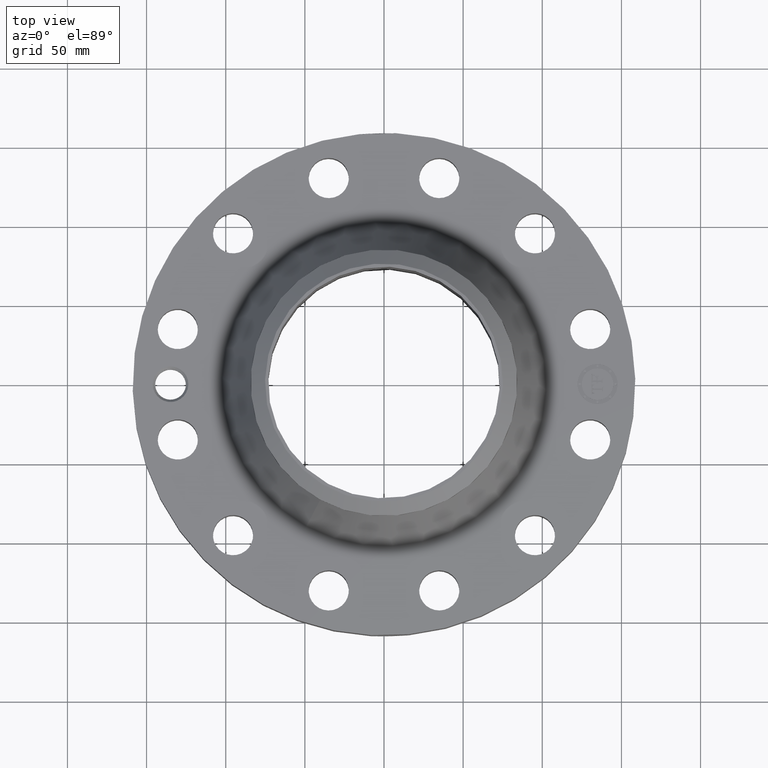
[diagram: clean part render]
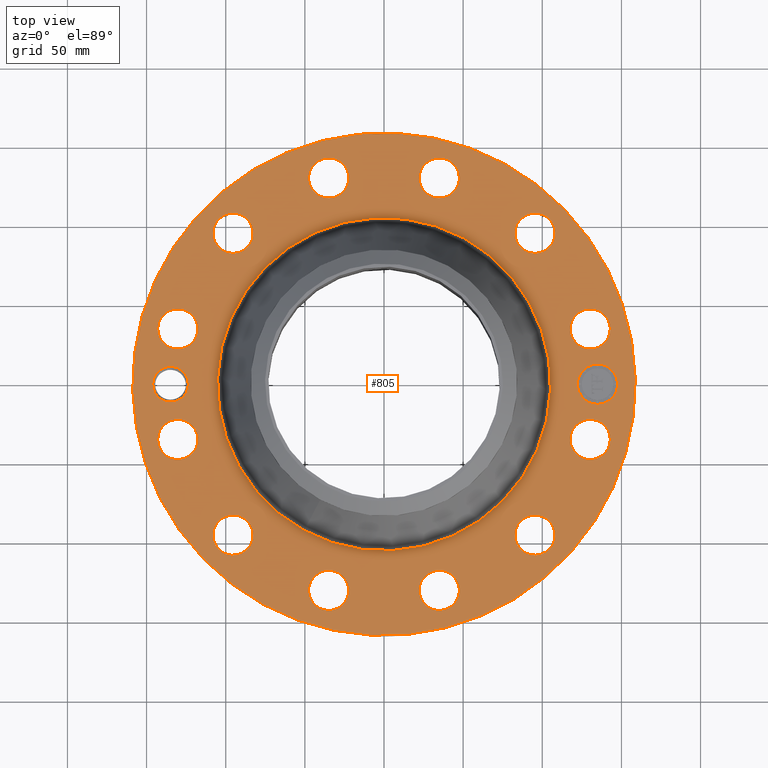
[diagram: same view with one face highlighted and labeled with its STEP entity id]
A machine part, top view. The second image highlights one B-rep face of the part: STEP entity #805.
In plain terms, the highlighted planar face has unit normal (0, 0, -1).
Its self-contained STEP definition (entity closure, byte-faithful):
#58=AXIS2_PLACEMENT_3D('Circle Axis2P3D',#56,#57,$) ;
#430=AXIS2_PLACEMENT_3D('Circle Axis2P3D',#428,#429,$) ;
#529=AXIS2_PLACEMENT_3D('Plane Axis2P3D',#526,#527,#528) ;
#537=AXIS2_PLACEMENT_3D('Circle Axis2P3D',#535,#536,$) ;
#546=AXIS2_PLACEMENT_3D('Circle Axis2P3D',#544,#545,$) ;
#555=AXIS2_PLACEMENT_3D('Circle Axis2P3D',#553,#554,$) ;
#564=AXIS2_PLACEMENT_3D('Circle Axis2P3D',#562,#563,$) ;
#573=AXIS2_PLACEMENT_3D('Circle Axis2P3D',#571,#572,$) ;
#582=AXIS2_PLACEMENT_3D('Circle Axis2P3D',#580,#581,$) ;
#591=AXIS2_PLACEMENT_3D('Circle Axis2P3D',#589,#590,$) ;
#600=AXIS2_PLACEMENT_3D('Circle Axis2P3D',#598,#599,$) ;
#609=AXIS2_PLACEMENT_3D('Circle Axis2P3D',#607,#608,$) ;
#618=AXIS2_PLACEMENT_3D('Circle Axis2P3D',#616,#617,$) ;
#627=AXIS2_PLACEMENT_3D('Circle Axis2P3D',#625,#626,$) ;
#636=AXIS2_PLACEMENT_3D('Circle Axis2P3D',#634,#635,$) ;
#645=AXIS2_PLACEMENT_3D('Circle Axis2P3D',#643,#644,$) ;
#654=AXIS2_PLACEMENT_3D('Circle Axis2P3D',#652,#653,$) ;
#663=AXIS2_PLACEMENT_3D('Circle Axis2P3D',#661,#662,$) ;
#672=AXIS2_PLACEMENT_3D('Circle Axis2P3D',#670,#671,$) ;
#681=AXIS2_PLACEMENT_3D('Circle Axis2P3D',#679,#680,$) ;
#690=AXIS2_PLACEMENT_3D('Circle Axis2P3D',#688,#689,$) ;
#699=AXIS2_PLACEMENT_3D('Circle Axis2P3D',#697,#698,$) ;
#708=AXIS2_PLACEMENT_3D('Circle Axis2P3D',#706,#707,$) ;
#717=AXIS2_PLACEMENT_3D('Circle Axis2P3D',#715,#716,$) ;
#726=AXIS2_PLACEMENT_3D('Circle Axis2P3D',#724,#725,$) ;
#735=AXIS2_PLACEMENT_3D('Circle Axis2P3D',#733,#734,$) ;
#744=AXIS2_PLACEMENT_3D('Circle Axis2P3D',#742,#743,$) ;
#753=AXIS2_PLACEMENT_3D('Circle Axis2P3D',#751,#752,$) ;
#762=AXIS2_PLACEMENT_3D('Circle Axis2P3D',#760,#761,$) ;
#771=AXIS2_PLACEMENT_3D('Circle Axis2P3D',#769,#770,$) ;
#780=AXIS2_PLACEMENT_3D('Circle Axis2P3D',#778,#779,$) ;
#789=AXIS2_PLACEMENT_3D('Circle Axis2P3D',#787,#788,$) ;
#798=AXIS2_PLACEMENT_3D('Circle Axis2P3D',#796,#797,$) ;
#53=CARTESIAN_POINT('Vertex',(-2.99640961629,-5.48489101184,1.87000000001)) ;
#56=CARTESIAN_POINT('Axis2P3D Location',(0.,0.,1.87000000001)) ;
#60=CARTESIAN_POINT('Vertex',(2.99640961629,5.48489101184,1.87000000001)) ;
#428=CARTESIAN_POINT('Axis2P3D Location',(0.,0.,1.87000000001)) ;
#526=CARTESIAN_POINT('Axis2P3D Location',(0.,6.25000000003,1.87000000001)) ;
#535=CARTESIAN_POINT('Axis2P3D Location',(-5.31000000002,-1.1189649382E-015,1.87000000001)) ;
#539=CARTESIAN_POINT('Vertex',(-5.69860672217,0.212296819878,1.87000000001)) ;
#541=CARTESIAN_POINT('Vertex',(-4.92139327788,-0.212296819878,1.87000000001)) ;
#544=CARTESIAN_POINT('Axis2P3D Location',(-5.31000000002,-1.1189649382E-015,1.87000000001)) ;
#553=CARTESIAN_POINT('Axis2P3D Location',(5.12906613762,-1.3743291295,1.87000000001)) ;
#557=CARTESIAN_POINT('Vertex',(4.69027485667,-1.1346163602,1.87000000001)) ;
#559=CARTESIAN_POINT('Vertex',(5.56785741856,-1.6140418988,1.87000000001)) ;
#562=CARTESIAN_POINT('Axis2P3D Location',(5.12906613762,-1.3743291295,1.87000000001)) ;
#571=CARTESIAN_POINT('Axis2P3D Location',(0.,0.,1.87000000001)) ;
#575=CARTESIAN_POINT('Vertex',(-1.98593442529,-3.63522858162,1.87000000001)) ;
#577=CARTESIAN_POINT('Vertex',(1.98593442529,3.63522858162,1.87000000001)) ;
#580=CARTESIAN_POINT('Axis2P3D Location',(0.,0.,1.87000000001)) ;
#589=CARTESIAN_POINT('Axis2P3D Location',(3.75473700812,-3.75473700812,1.87000000001)) ;
#593=CARTESIAN_POINT('Vertex',(4.01488501972,-4.18172999642,1.87000000001)) ;
#595=CARTESIAN_POINT('Vertex',(3.49458899651,-3.32774401981,1.87000000001)) ;
#598=CARTESIAN_POINT('Axis2P3D Location',(3.75473700812,-3.75473700812,1.87000000001)) ;
#607=CARTESIAN_POINT('Axis2P3D Location',(1.3743291295,-5.12906613762,1.87000000001)) ;
#611=CARTESIAN_POINT('Vertex',(1.38612742215,-5.62892691853,1.87000000001)) ;
#613=CARTESIAN_POINT('Vertex',(1.36253083685,-4.6292053567,1.87000000001)) ;
#616=CARTESIAN_POINT('Axis2P3D Location',(1.3743291295,-5.12906613762,1.87000000001)) ;
#625=CARTESIAN_POINT('Axis2P3D Location',(-1.3743291295,-5.12906613762,1.87000000001)) ;
#629=CARTESIAN_POINT('Vertex',(-1.6140418988,-5.56785741856,1.87000000001)) ;
#631=CARTESIAN_POINT('Vertex',(-1.1346163602,-4.69027485667,1.87000000001)) ;
#634=CARTESIAN_POINT('Axis2P3D Location',(-1.3743291295,-5.12906613762,1.87000000001)) ;
#643=CARTESIAN_POINT('Axis2P3D Location',(-3.75473700812,-3.75473700812,1.87000000001)) ;
#647=CARTESIAN_POINT('Vertex',(-4.18172999642,-4.01488501972,1.87000000001)) ;
#649=CARTESIAN_POINT('Vertex',(-3.32774401981,-3.49458899651,1.87000000001)) ;
#652=CARTESIAN_POINT('Axis2P3D Location',(-3.75473700812,-3.75473700812,1.87000000001)) ;
#661=CARTESIAN_POINT('Axis2P3D Location',(-5.12906613762,-1.3743291295,1.87000000001)) ;
#665=CARTESIAN_POINT('Vertex',(-5.62892691853,-1.38612742215,1.87000000001)) ;
#667=CARTESIAN_POINT('Vertex',(-4.6292053567,-1.36253083685,1.87000000001)) ;
#670=CARTESIAN_POINT('Axis2P3D Location',(-5.12906613762,-1.3743291295,1.87000000001)) ;
#679=CARTESIAN_POINT('Axis2P3D Location',(-5.12906613762,1.3743291295,1.87000000001)) ;
#683=CARTESIAN_POINT('Vertex',(-5.56785741856,1.6140418988,1.87000000001)) ;
#685=CARTESIAN_POINT('Vertex',(-4.69027485667,1.1346163602,1.87000000001)) ;
#688=CARTESIAN_POINT('Axis2P3D Location',(-5.12906613762,1.3743291295,1.87000000001)) ;
#697=CARTESIAN_POINT('Axis2P3D Location',(-3.75473700812,3.75473700812,1.87000000001)) ;
#701=CARTESIAN_POINT('Vertex',(-4.01488501972,4.18172999642,1.87000000001)) ;
#703=CARTESIAN_POINT('Vertex',(-3.49458899651,3.32774401981,1.87000000001)) ;
#706=CARTESIAN_POINT('Axis2P3D Location',(-3.75473700812,3.75473700812,1.87000000001)) ;
#715=CARTESIAN_POINT('Axis2P3D Location',(-1.3743291295,5.12906613762,1.87000000001)) ;
#719=CARTESIAN_POINT('Vertex',(-1.38612742215,5.62892691853,1.87000000001)) ;
#721=CARTESIAN_POINT('Vertex',(-1.36253083685,4.6292053567,1.87000000001)) ;
#724=CARTESIAN_POINT('Axis2P3D Location',(-1.3743291295,5.12906613762,1.87000000001)) ;
#733=CARTESIAN_POINT('Axis2P3D Location',(1.3743291295,5.12906613762,1.87000000001)) ;
#737=CARTESIAN_POINT('Vertex',(1.6140418988,5.56785741856,1.87000000001)) ;
#739=CARTESIAN_POINT('Vertex',(1.1346163602,4.69027485667,1.87000000001)) ;
#742=CARTESIAN_POINT('Axis2P3D Location',(1.3743291295,5.12906613762,1.87000000001)) ;
#751=CARTESIAN_POINT('Axis2P3D Location',(3.75473700812,3.75473700812,1.87000000001)) ;
#755=CARTESIAN_POINT('Vertex',(4.18172999642,4.01488501972,1.87000000001)) ;
#757=CARTESIAN_POINT('Vertex',(3.32774401981,3.49458899651,1.87000000001)) ;
#760=CARTESIAN_POINT('Axis2P3D Location',(3.75473700812,3.75473700812,1.87000000001)) ;
#769=CARTESIAN_POINT('Axis2P3D Location',(5.12906613762,1.3743291295,1.87000000001)) ;
#773=CARTESIAN_POINT('Vertex',(5.62892691853,1.38612742215,1.87000000001)) ;
#775=CARTESIAN_POINT('Vertex',(4.6292053567,1.36253083685,1.87000000001)) ;
#778=CARTESIAN_POINT('Axis2P3D Location',(5.12906613762,1.3743291295,1.87000000001)) ;
#787=CARTESIAN_POINT('Axis2P3D Location',(5.31000000002,-1.90224039495E-014,1.87000000001)) ;
#791=CARTESIAN_POINT('Vertex',(5.31000000002,0.499999995002,1.87000000001)) ;
#793=CARTESIAN_POINT('Vertex',(5.31000000002,-0.499999995002,1.87000000001)) ;
#796=CARTESIAN_POINT('Axis2P3D Location',(5.31000000002,-2.01413688877E-014,1.87000000001)) ;
#57=DIRECTION('Axis2P3D Direction',(0.,0.,-0.0393700787402)) ;
#429=DIRECTION('Axis2P3D Direction',(0.,0.,-0.0393700787402)) ;
#527=DIRECTION('Axis2P3D Direction',(0.,0.,-0.0393700787402)) ;
#528=DIRECTION('Axis2P3D XDirection',(0.0393700787402,0.,0.)) ;
#536=DIRECTION('Axis2P3D Direction',(0.,0.,-0.0393700787402)) ;
#545=DIRECTION('Axis2P3D Direction',(0.,0.,-0.0393700787402)) ;
#554=DIRECTION('Axis2P3D Direction',(0.,0.,-0.0393700787402)) ;
#563=DIRECTION('Axis2P3D Direction',(0.,0.,-0.0393700787402)) ;
#572=DIRECTION('Axis2P3D Direction',(0.,0.,-0.0393700787402)) ;
#581=DIRECTION('Axis2P3D Direction',(0.,0.,-0.0393700787402)) ;
#590=DIRECTION('Axis2P3D Direction',(0.,0.,-0.0393700787402)) ;
#599=DIRECTION('Axis2P3D Direction',(0.,0.,-0.0393700787402)) ;
#608=DIRECTION('Axis2P3D Direction',(0.,0.,-0.0393700787402)) ;
#617=DIRECTION('Axis2P3D Direction',(0.,0.,-0.0393700787402)) ;
#626=DIRECTION('Axis2P3D Direction',(0.,0.,-0.0393700787402)) ;
#635=DIRECTION('Axis2P3D Direction',(0.,0.,-0.0393700787402)) ;
#644=DIRECTION('Axis2P3D Direction',(0.,0.,-0.0393700787402)) ;
#653=DIRECTION('Axis2P3D Direction',(0.,0.,-0.0393700787402)) ;
#662=DIRECTION('Axis2P3D Direction',(0.,0.,-0.0393700787402)) ;
#671=DIRECTION('Axis2P3D Direction',(0.,0.,-0.0393700787402)) ;
#680=DIRECTION('Axis2P3D Direction',(0.,0.,-0.0393700787402)) ;
#689=DIRECTION('Axis2P3D Direction',(0.,0.,-0.0393700787402)) ;
#698=DIRECTION('Axis2P3D Direction',(0.,0.,-0.0393700787402)) ;
#707=DIRECTION('Axis2P3D Direction',(0.,0.,-0.0393700787402)) ;
#716=DIRECTION('Axis2P3D Direction',(0.,0.,-0.0393700787402)) ;
#725=DIRECTION('Axis2P3D Direction',(0.,0.,-0.0393700787402)) ;
#734=DIRECTION('Axis2P3D Direction',(0.,0.,-0.0393700787402)) ;
#743=DIRECTION('Axis2P3D Direction',(0.,0.,-0.0393700787402)) ;
#752=DIRECTION('Axis2P3D Direction',(0.,0.,-0.0393700787402)) ;
#761=DIRECTION('Axis2P3D Direction',(0.,0.,-0.0393700787402)) ;
#770=DIRECTION('Axis2P3D Direction',(0.,0.,-0.0393700787402)) ;
#779=DIRECTION('Axis2P3D Direction',(0.,0.,-0.0393700787402)) ;
#788=DIRECTION('Axis2P3D Direction',(0.,0.,-0.0393700787402)) ;
#797=DIRECTION('Axis2P3D Direction',(0.,0.,-0.0393700787402)) ;
#532=ORIENTED_EDGE('',*,*,#432,.F.) ;
#533=ORIENTED_EDGE('',*,*,#62,.F.) ;
#550=ORIENTED_EDGE('',*,*,#543,.T.) ;
#551=ORIENTED_EDGE('',*,*,#548,.T.) ;
#568=ORIENTED_EDGE('',*,*,#561,.T.) ;
#569=ORIENTED_EDGE('',*,*,#566,.T.) ;
#586=ORIENTED_EDGE('',*,*,#579,.T.) ;
#587=ORIENTED_EDGE('',*,*,#584,.T.) ;
#604=ORIENTED_EDGE('',*,*,#597,.T.) ;
#605=ORIENTED_EDGE('',*,*,#602,.T.) ;
#622=ORIENTED_EDGE('',*,*,#615,.T.) ;
#623=ORIENTED_EDGE('',*,*,#620,.T.) ;
#640=ORIENTED_EDGE('',*,*,#633,.T.) ;
#641=ORIENTED_EDGE('',*,*,#638,.T.) ;
#658=ORIENTED_EDGE('',*,*,#651,.T.) ;
#659=ORIENTED_EDGE('',*,*,#656,.T.) ;
#676=ORIENTED_EDGE('',*,*,#669,.T.) ;
#677=ORIENTED_EDGE('',*,*,#674,.T.) ;
#694=ORIENTED_EDGE('',*,*,#687,.T.) ;
#695=ORIENTED_EDGE('',*,*,#692,.T.) ;
#712=ORIENTED_EDGE('',*,*,#705,.T.) ;
#713=ORIENTED_EDGE('',*,*,#710,.T.) ;
#730=ORIENTED_EDGE('',*,*,#723,.T.) ;
#731=ORIENTED_EDGE('',*,*,#728,.T.) ;
#748=ORIENTED_EDGE('',*,*,#741,.T.) ;
#749=ORIENTED_EDGE('',*,*,#746,.T.) ;
#766=ORIENTED_EDGE('',*,*,#759,.T.) ;
#767=ORIENTED_EDGE('',*,*,#764,.T.) ;
#784=ORIENTED_EDGE('',*,*,#777,.T.) ;
#785=ORIENTED_EDGE('',*,*,#782,.T.) ;
#802=ORIENTED_EDGE('',*,*,#795,.T.) ;
#803=ORIENTED_EDGE('',*,*,#800,.T.) ;
#552=FACE_BOUND('',#549,.T.) ;
#570=FACE_BOUND('',#567,.T.) ;
#588=FACE_BOUND('',#585,.T.) ;
#606=FACE_BOUND('',#603,.T.) ;
#624=FACE_BOUND('',#621,.T.) ;
#642=FACE_BOUND('',#639,.T.) ;
#660=FACE_BOUND('',#657,.T.) ;
#678=FACE_BOUND('',#675,.T.) ;
#696=FACE_BOUND('',#693,.T.) ;
#714=FACE_BOUND('',#711,.T.) ;
#732=FACE_BOUND('',#729,.T.) ;
#750=FACE_BOUND('',#747,.T.) ;
#768=FACE_BOUND('',#765,.T.) ;
#786=FACE_BOUND('',#783,.T.) ;
#804=FACE_BOUND('',#801,.T.) ;
#805=ADVANCED_FACE('PartBody',(#534,#552,#570,#588,#606,#624,#642,#660,#678,#696,#714,#732,#750,#768,#786,#804),#530,.F.) ;
#59=CIRCLE('generated circle',#58,6.25000000003) ;
#431=CIRCLE('generated circle',#430,6.25000000003) ;
#538=CIRCLE('generated circle',#537,0.442815000002) ;
#547=CIRCLE('generated circle',#546,0.442815000002) ;
#556=CIRCLE('generated circle',#555,0.500000000002) ;
#565=CIRCLE('generated circle',#564,0.500000000002) ;
#574=CIRCLE('generated circle',#573,4.14232089319) ;
#583=CIRCLE('generated circle',#582,4.14232089319) ;
#592=CIRCLE('generated circle',#591,0.500000000002) ;
#601=CIRCLE('generated circle',#600,0.500000000002) ;
#610=CIRCLE('generated circle',#609,0.500000000002) ;
#619=CIRCLE('generated circle',#618,0.500000000002) ;
#628=CIRCLE('generated circle',#627,0.500000000002) ;
#637=CIRCLE('generated circle',#636,0.500000000002) ;
#646=CIRCLE('generated circle',#645,0.500000000002) ;
#655=CIRCLE('generated circle',#654,0.500000000002) ;
#664=CIRCLE('generated circle',#663,0.500000000002) ;
#673=CIRCLE('generated circle',#672,0.500000000002) ;
#682=CIRCLE('generated circle',#681,0.500000000002) ;
#691=CIRCLE('generated circle',#690,0.500000000002) ;
#700=CIRCLE('generated circle',#699,0.500000000002) ;
#709=CIRCLE('generated circle',#708,0.500000000002) ;
#718=CIRCLE('generated circle',#717,0.500000000002) ;
#727=CIRCLE('generated circle',#726,0.500000000002) ;
#736=CIRCLE('generated circle',#735,0.500000000002) ;
#745=CIRCLE('generated circle',#744,0.500000000002) ;
#754=CIRCLE('generated circle',#753,0.500000000002) ;
#763=CIRCLE('generated circle',#762,0.500000000002) ;
#772=CIRCLE('generated circle',#771,0.500000000002) ;
#781=CIRCLE('generated circle',#780,0.500000000002) ;
#790=CIRCLE('generated circle',#789,0.499999995002) ;
#799=CIRCLE('generated circle',#798,0.499999995002) ;
#62=EDGE_CURVE('',#54,#61,#59,.T.) ;
#432=EDGE_CURVE('',#61,#54,#431,.T.) ;
#543=EDGE_CURVE('',#540,#542,#538,.T.) ;
#548=EDGE_CURVE('',#542,#540,#547,.T.) ;
#561=EDGE_CURVE('',#558,#560,#556,.T.) ;
#566=EDGE_CURVE('',#560,#558,#565,.T.) ;
#579=EDGE_CURVE('',#576,#578,#574,.T.) ;
#584=EDGE_CURVE('',#578,#576,#583,.T.) ;
#597=EDGE_CURVE('',#594,#596,#592,.T.) ;
#602=EDGE_CURVE('',#596,#594,#601,.T.) ;
#615=EDGE_CURVE('',#612,#614,#610,.T.) ;
#620=EDGE_CURVE('',#614,#612,#619,.T.) ;
#633=EDGE_CURVE('',#630,#632,#628,.T.) ;
#638=EDGE_CURVE('',#632,#630,#637,.T.) ;
#651=EDGE_CURVE('',#648,#650,#646,.T.) ;
#656=EDGE_CURVE('',#650,#648,#655,.T.) ;
#669=EDGE_CURVE('',#666,#668,#664,.T.) ;
#674=EDGE_CURVE('',#668,#666,#673,.T.) ;
#687=EDGE_CURVE('',#684,#686,#682,.T.) ;
#692=EDGE_CURVE('',#686,#684,#691,.T.) ;
#705=EDGE_CURVE('',#702,#704,#700,.T.) ;
#710=EDGE_CURVE('',#704,#702,#709,.T.) ;
#723=EDGE_CURVE('',#720,#722,#718,.T.) ;
#728=EDGE_CURVE('',#722,#720,#727,.T.) ;
#741=EDGE_CURVE('',#738,#740,#736,.T.) ;
#746=EDGE_CURVE('',#740,#738,#745,.T.) ;
#759=EDGE_CURVE('',#756,#758,#754,.T.) ;
#764=EDGE_CURVE('',#758,#756,#763,.T.) ;
#777=EDGE_CURVE('',#774,#776,#772,.T.) ;
#782=EDGE_CURVE('',#776,#774,#781,.T.) ;
#795=EDGE_CURVE('',#792,#794,#790,.T.) ;
#800=EDGE_CURVE('',#794,#792,#799,.T.) ;
#531=EDGE_LOOP('',(#532,#533)) ;
#549=EDGE_LOOP('',(#550,#551)) ;
#567=EDGE_LOOP('',(#568,#569)) ;
#585=EDGE_LOOP('',(#586,#587)) ;
#603=EDGE_LOOP('',(#604,#605)) ;
#621=EDGE_LOOP('',(#622,#623)) ;
#639=EDGE_LOOP('',(#640,#641)) ;
#657=EDGE_LOOP('',(#658,#659)) ;
#675=EDGE_LOOP('',(#676,#677)) ;
#693=EDGE_LOOP('',(#694,#695)) ;
#711=EDGE_LOOP('',(#712,#713)) ;
#729=EDGE_LOOP('',(#730,#731)) ;
#747=EDGE_LOOP('',(#748,#749)) ;
#765=EDGE_LOOP('',(#766,#767)) ;
#783=EDGE_LOOP('',(#784,#785)) ;
#801=EDGE_LOOP('',(#802,#803)) ;
#534=FACE_OUTER_BOUND('',#531,.T.) ;
#530=PLANE('',#529) ;
#54=VERTEX_POINT('',#53) ;
#61=VERTEX_POINT('',#60) ;
#540=VERTEX_POINT('',#539) ;
#542=VERTEX_POINT('',#541) ;
#558=VERTEX_POINT('',#557) ;
#560=VERTEX_POINT('',#559) ;
#576=VERTEX_POINT('',#575) ;
#578=VERTEX_POINT('',#577) ;
#594=VERTEX_POINT('',#593) ;
#596=VERTEX_POINT('',#595) ;
#612=VERTEX_POINT('',#611) ;
#614=VERTEX_POINT('',#613) ;
#630=VERTEX_POINT('',#629) ;
#632=VERTEX_POINT('',#631) ;
#648=VERTEX_POINT('',#647) ;
#650=VERTEX_POINT('',#649) ;
#666=VERTEX_POINT('',#665) ;
#668=VERTEX_POINT('',#667) ;
#684=VERTEX_POINT('',#683) ;
#686=VERTEX_POINT('',#685) ;
#702=VERTEX_POINT('',#701) ;
#704=VERTEX_POINT('',#703) ;
#720=VERTEX_POINT('',#719) ;
#722=VERTEX_POINT('',#721) ;
#738=VERTEX_POINT('',#737) ;
#740=VERTEX_POINT('',#739) ;
#756=VERTEX_POINT('',#755) ;
#758=VERTEX_POINT('',#757) ;
#774=VERTEX_POINT('',#773) ;
#776=VERTEX_POINT('',#775) ;
#792=VERTEX_POINT('',#791) ;
#794=VERTEX_POINT('',#793) ;